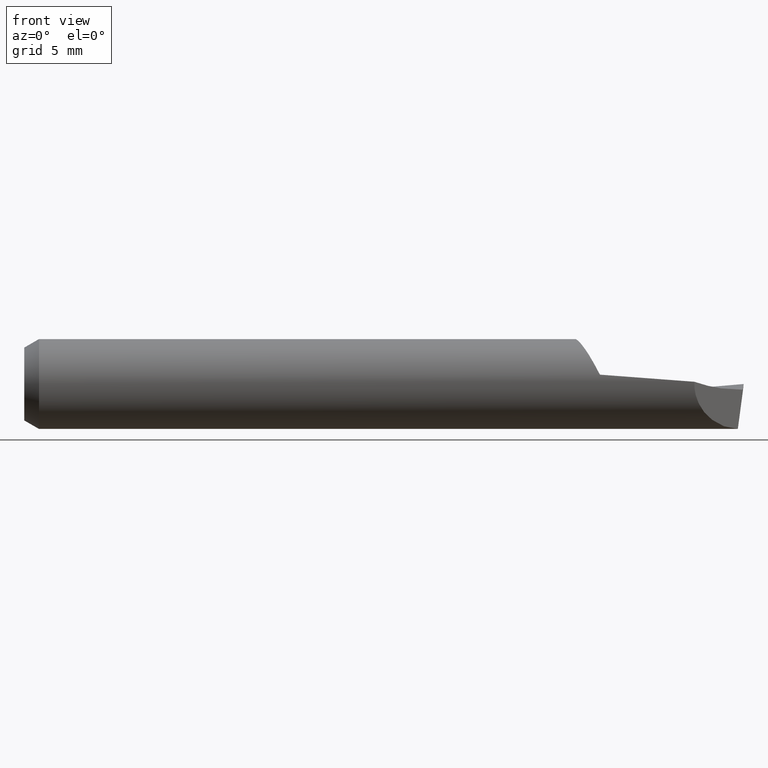
[diagram: clean part render]
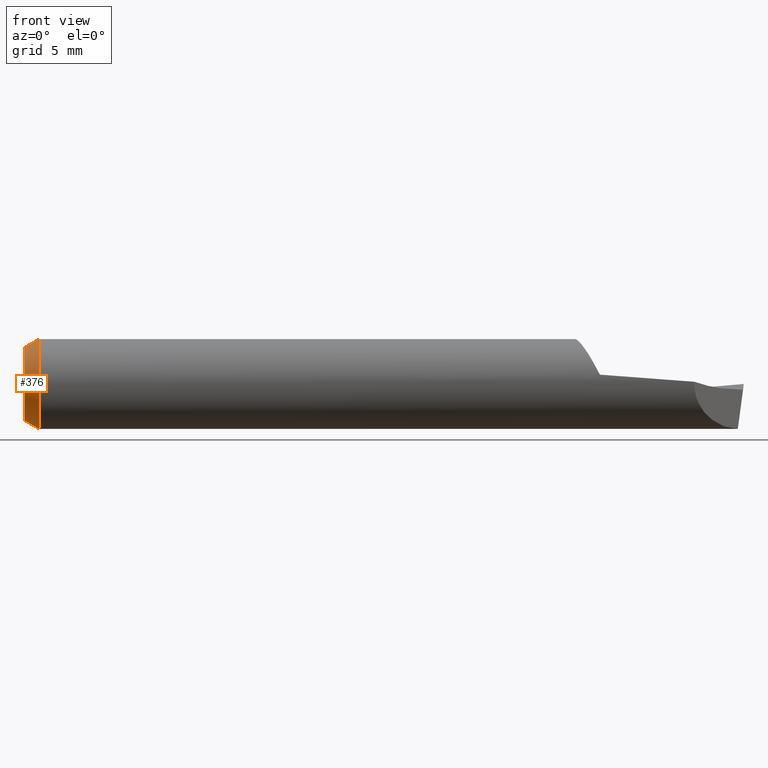
[diagram: same view with one face highlighted and labeled with its STEP entity id]
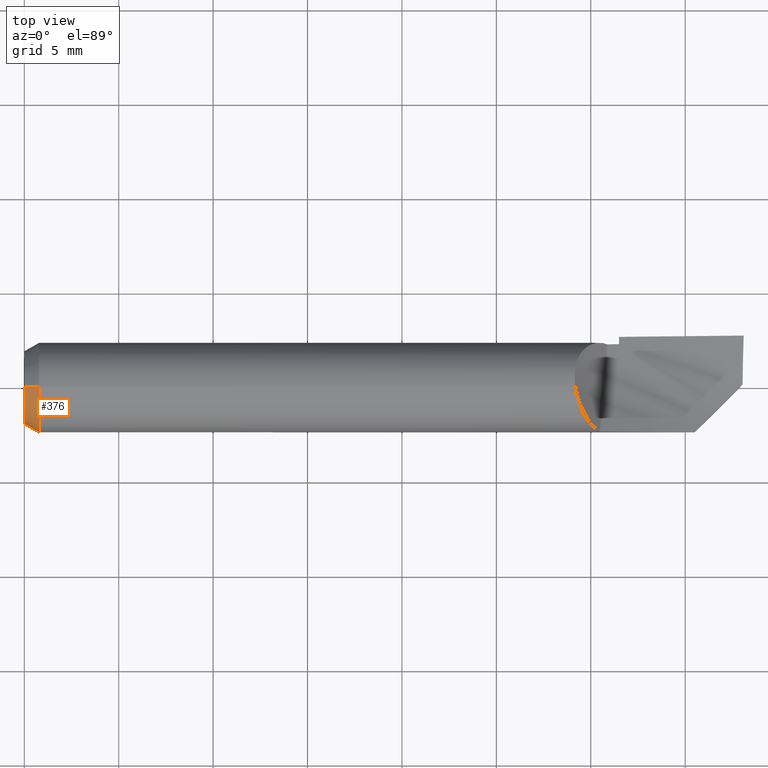
[diagram: same view with one face highlighted and labeled with its STEP entity id]
A machine part, front view. The second image highlights one B-rep face of the part: STEP entity #376.
A second angle (top view) of the same face is appended — the face is thin or edge-on in the first view.
In plain terms, the highlighted conical surface has half-angle 30 deg.
Its self-contained STEP definition (entity closure, byte-faithful):
#1 = DIRECTION ( 'NONE',  ( -1.000000000000000000, -0.000000000000000000, -0.000000000000000000 ) ) ;
#18 = DIRECTION ( 'NONE',  ( 1.000000000000000000, 0.000000000000000000, 0.000000000000000000 ) ) ;
#19 = DIRECTION ( 'NONE',  ( 0.000000000000000000, 0.000000000000000000, 1.000000000000000000 ) ) ;
#28 = AXIS2_PLACEMENT_3D ( 'NONE', #676, #1, #101 ) ;
#56 = CARTESIAN_POINT ( 'NONE',  ( 0.03057069675359059061, 0.000000000000000000, 0.000000000000000000 ) ) ;
#67 = DIRECTION ( 'NONE',  ( 0.8660254037844377084, 6.123233995736780827E-17, 0.5000000000000012212 ) ) ;
#85 = CARTESIAN_POINT ( 'NONE',  ( 0.03057069675359059061, 1.146881727401496266E-17, -0.09364999999999999714 ) ) ;
#89 = EDGE_CURVE ( 'NONE', #159, #100, #139, .T. ) ;
#100 = VERTEX_POINT ( 'NONE', #236 ) ;
#101 = DIRECTION ( 'NONE',  ( 0.000000000000000000, 0.000000000000000000, 1.000000000000000000 ) ) ;
#114 = LINE ( 'NONE', #284, #136 ) ;
#136 = VECTOR ( 'NONE', #67, 39.37007874015748854 ) ;
#139 = CIRCLE ( 'NONE', #233, 0.09364999999999999714 ) ;
#148 = AXIS2_PLACEMENT_3D ( 'NONE', #223, #18, #162 ) ;
#157 = CARTESIAN_POINT ( 'NONE',  ( 0.000000000000000000, 1.038806647376742246E-17, 0.07599999999999999811 ) ) ;
#159 = VERTEX_POINT ( 'NONE', #85 ) ;
#162 = DIRECTION ( 'NONE',  ( 0.000000000000000000, 0.000000000000000000, -1.000000000000000000 ) ) ;
#180 = CARTESIAN_POINT ( 'NONE',  ( 0.000000000000000000, 0.000000000000000000, -0.07599999999999999811 ) ) ;
#207 = EDGE_CURVE ( 'NONE', #668, #159, #409, .T. ) ;
#210 = EDGE_LOOP ( 'NONE', ( #466, #292, #237, #572 ) ) ;
#223 = CARTESIAN_POINT ( 'NONE',  ( 0.03057069675359059061, 0.000000000000000000, 0.000000000000000000 ) ) ;
#233 = AXIS2_PLACEMENT_3D ( 'NONE', #56, #372, #19 ) ;
#236 = CARTESIAN_POINT ( 'NONE',  ( 0.03057069675359059061, 0.000000000000000000, 0.09364999999999999714 ) ) ;
#237 = ORIENTED_EDGE ( 'NONE', *, *, #207, .T. ) ;
#284 = CARTESIAN_POINT ( 'NONE',  ( 0.03057069675359059061, 1.146881727401496266E-17, 0.09364999999999999714 ) ) ;
#292 = ORIENTED_EDGE ( 'NONE', *, *, #550, .F. ) ;
#329 = CIRCLE ( 'NONE', #28, 0.07599999999999999811 ) ;
#332 = VECTOR ( 'NONE', #509, 39.37007874015748854 ) ;
#372 = DIRECTION ( 'NONE',  ( -1.000000000000000000, -0.000000000000000000, -0.000000000000000000 ) ) ;
#376 = ADVANCED_FACE ( 'NONE', ( #422 ), #590, .T. ) ;
#409 = LINE ( 'NONE', #678, #332 ) ;
#422 = FACE_OUTER_BOUND ( 'NONE', #210, .T. ) ;
#466 = ORIENTED_EDGE ( 'NONE', *, *, #671, .F. ) ;
#509 = DIRECTION ( 'NONE',  ( 0.8660254037844377084, 0.000000000000000000, -0.5000000000000012212 ) ) ;
#550 = EDGE_CURVE ( 'NONE', #668, #594, #329, .T. ) ;
#572 = ORIENTED_EDGE ( 'NONE', *, *, #89, .T. ) ;
#590 = CONICAL_SURFACE ( 'NONE', #148, 0.09364999999999999714, 0.5235987755983003700 ) ;
#594 = VERTEX_POINT ( 'NONE', #157 ) ;
#668 = VERTEX_POINT ( 'NONE', #180 ) ;
#671 = EDGE_CURVE ( 'NONE', #594, #100, #114, .T. ) ;
#676 = CARTESIAN_POINT ( 'NONE',  ( 0.000000000000000000, 0.000000000000000000, 0.000000000000000000 ) ) ;
#678 = CARTESIAN_POINT ( 'NONE',  ( 0.03057069675359059061, 0.000000000000000000, -0.09364999999999999714 ) ) ;